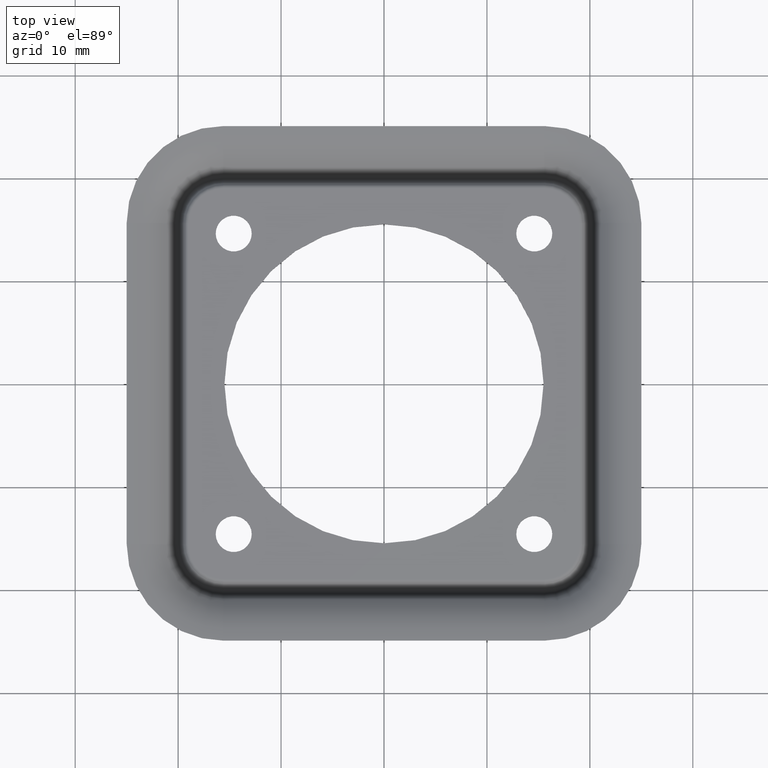
[diagram: clean part render]
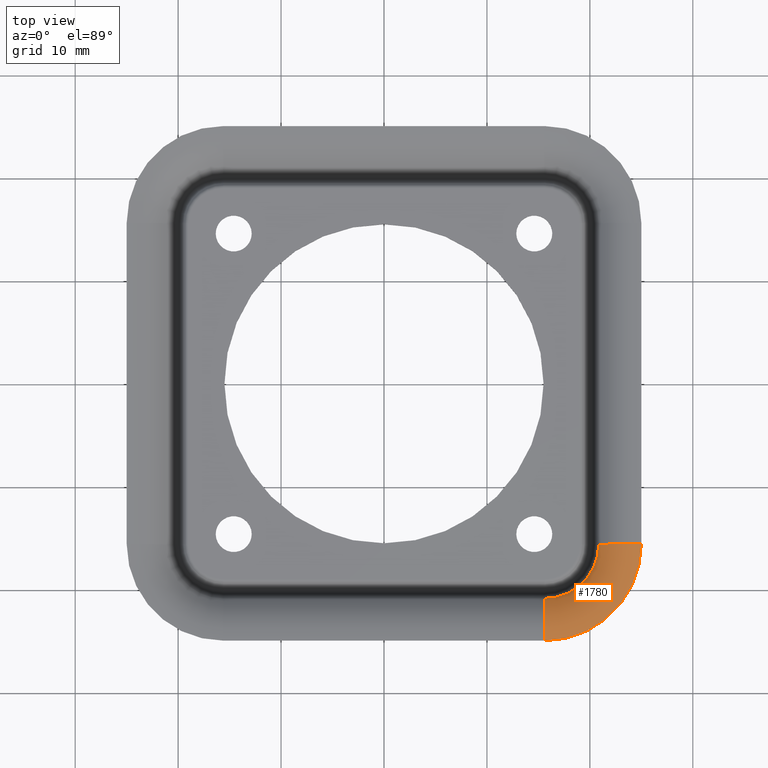
[diagram: same view with one face highlighted and labeled with its STEP entity id]
A machine part, top view. The second image highlights one B-rep face of the part: STEP entity #1780.
In plain terms, the highlighted toroidal blend (fillet) surface has major radius 9.4 mm and minor (blend) radius 5.2858 mm.
Its self-contained STEP definition (entity closure, byte-faithful):
#490=CARTESIAN_POINT('',(1.56E1,-1.56E1,3.E0));
#491=DIRECTION('',(0.E0,0.E0,1.E0));
#492=DIRECTION('',(0.E0,-1.E0,0.E0));
#493=AXIS2_PLACEMENT_3D('',#490,#491,#492);
#495=CARTESIAN_POINT('',(1.56E1,-2.5E1,-2.285771302338E0));
#496=DIRECTION('',(1.E0,0.E0,0.E0));
#497=DIRECTION('',(0.E0,7.833144229636E-1,6.216257031183E-1));
#498=AXIS2_PLACEMENT_3D('',#495,#496,#497);
#500=CARTESIAN_POINT('',(1.56E1,-1.56E1,1.E0));
#501=DIRECTION('',(0.E0,0.E0,1.E0));
#502=DIRECTION('',(0.E0,-1.E0,0.E0));
#503=AXIS2_PLACEMENT_3D('',#500,#501,#502);
#505=CARTESIAN_POINT('',(2.5E1,-1.56E1,-2.285771302338E0));
#506=DIRECTION('',(0.E0,1.E0,0.E0));
#507=DIRECTION('',(-7.833144229636E-1,0.E0,6.216257031183E-1));
#508=AXIS2_PLACEMENT_3D('',#505,#506,#507);
#853=CARTESIAN_POINT('',(1.56E1,-2.5E1,3.E0));
#855=VERTEX_POINT('',#853);
#857=CARTESIAN_POINT('',(2.5E1,-1.56E1,3.E0));
#859=VERTEX_POINT('',#857);
#906=CARTESIAN_POINT('',(1.56E1,-2.085957910239E1,1.E0));
#908=VERTEX_POINT('',#906);
#914=CARTESIAN_POINT('',(2.085957910239E1,-1.56E1,1.E0));
#916=VERTEX_POINT('',#914);
#1768=CARTESIAN_POINT('',(1.56E1,-1.56E1,-2.285771302338E0));
#1769=DIRECTION('',(0.E0,0.E0,1.E0));
#1770=DIRECTION('',(0.E0,1.E0,0.E0));
#1771=AXIS2_PLACEMENT_3D('',#1768,#1769,#1770);
#1772=TOROIDAL_SURFACE('',#1771,9.4E0,5.285771302338E0);
#1773=ORIENTED_EDGE('',*,*,#1619,.F.);
#1774=ORIENTED_EDGE('',*,*,#1593,.T.);
#1776=ORIENTED_EDGE('',*,*,#1775,.T.);
#1777=ORIENTED_EDGE('',*,*,#1759,.F.);
#1778=EDGE_LOOP('',(#1773,#1774,#1776,#1777));
#1779=FACE_OUTER_BOUND('',#1778,.F.);
#1780=ADVANCED_FACE('',(#1779),#1772,.T.);
#494=CIRCLE('',#493,9.4E0);
#499=CIRCLE('',#498,5.285771302338E0);
#504=CIRCLE('',#503,5.259579102391E0);
#509=CIRCLE('',#508,5.285771302338E0);
#1593=EDGE_CURVE('',#908,#916,#504,.T.);
#1619=EDGE_CURVE('',#908,#855,#499,.T.);
#1759=EDGE_CURVE('',#855,#859,#494,.T.);
#1775=EDGE_CURVE('',#916,#859,#509,.T.);